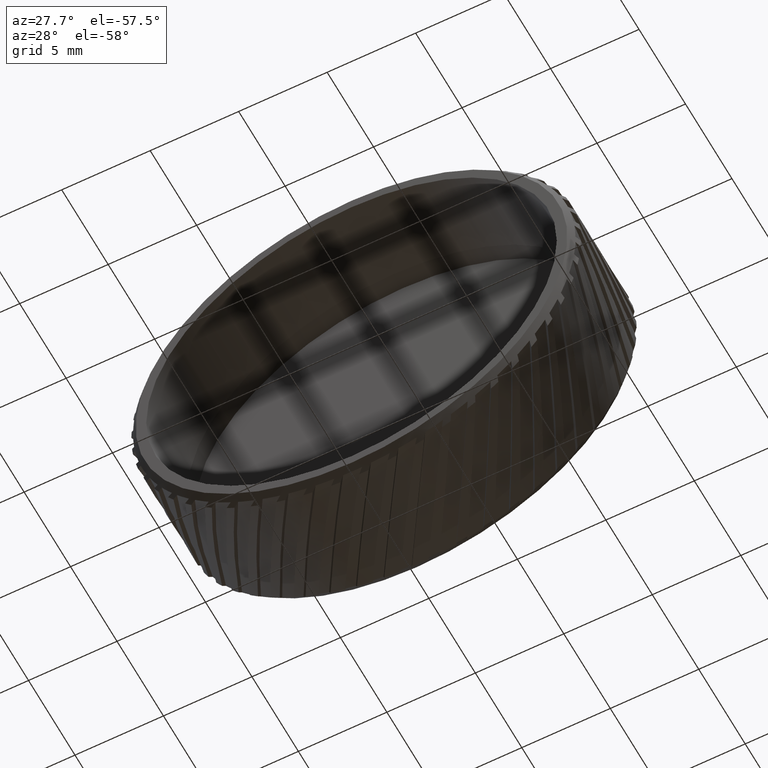
[diagram: clean part render]
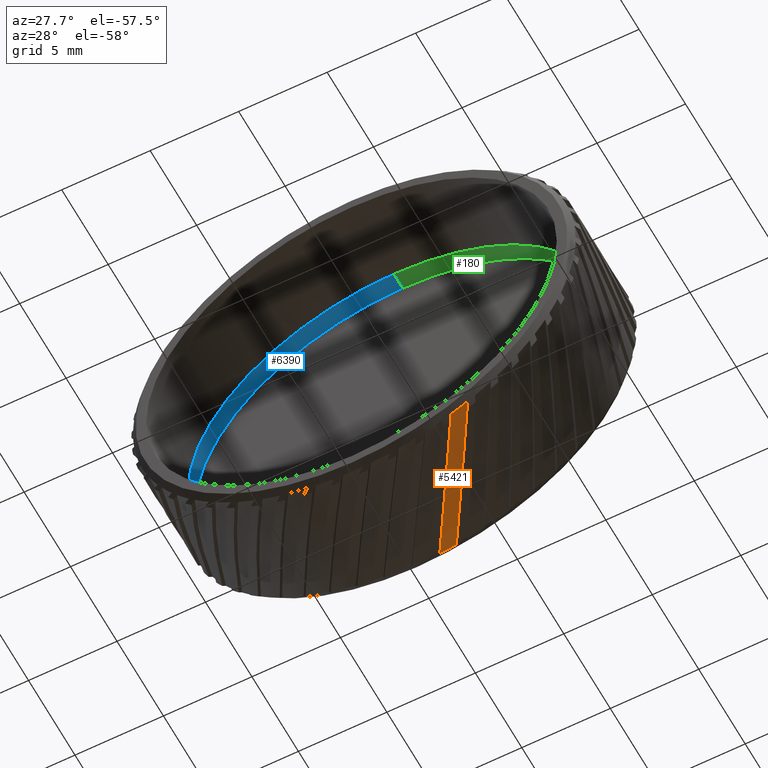
[diagram: same view with three faces highlighted in distinct colors, each labeled with its STEP entity id]
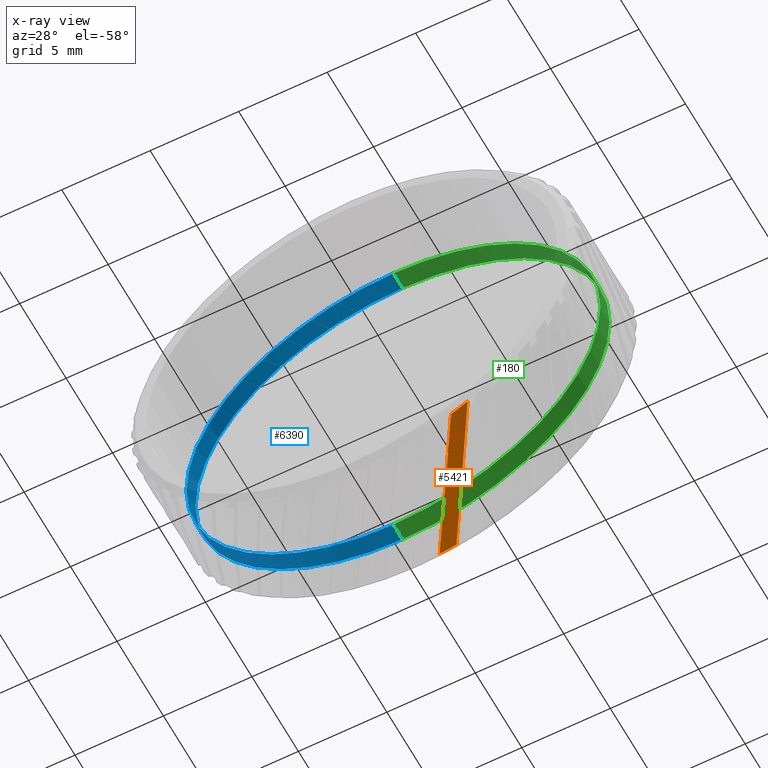
[diagram: x-ray of the same camera — body ghosted, the three highlighted faces saturated]
A machine part, auxiliary view with three faces highlighted in distinct colors.
The next image is the same camera in x-ray (body ghosted, the three faces saturated) — at least one of them is partly hidden behind the body in this view.
Their STEP definitions:

[orange] entity #5421 — the highlighted cylindrical surface (partial cylindrical patch) has radius 12.5 mm, axis along (0, 1, 0).
#2 = CARTESIAN_POINT ( 'NONE',  ( 6.404945631355030100, -13.03088448223190600, -10.73436870334656800 ) ) ;
#151 = DIRECTION ( 'NONE',  ( 0.0000000000000000000, 0.0000000000000000000, -1.000000000000000000 ) ) ;
#372 = CARTESIAN_POINT ( 'NONE',  ( 1.464468305853522800, -6.630884482231918400, -12.41391689118107200 ) ) ;
#530 = CARTESIAN_POINT ( 'NONE',  ( 2.407684982128884600, -6.630884482231918400, -12.26593058136361800 ) ) ;
#642 = AXIS2_PLACEMENT_3D ( 'NONE', #5379, #5456, #3630 ) ;
#884 = CYLINDRICAL_SURFACE ( 'NONE', #6932, 12.50000000000000500 ) ;
#1050 = DIRECTION ( 'NONE',  ( 0.0000000000000000000, 0.0000000000000000000, -1.000000000000000000 ) ) ;
#1233 = CIRCLE ( 'NONE', #5589, 12.50000000000000500 ) ;
#1251 = ORIENTED_EDGE ( 'NONE', *, *, #5615, .T. ) ;
#1362 = VERTEX_POINT ( 'NONE', #4127 ) ;
#1641 = CARTESIAN_POINT ( 'NONE',  ( 5.461728955079669500, -13.03088448223190600, -11.24364339621479100 ) ) ;
#1943 = EDGE_CURVE ( 'NONE', #7426, #1362, #1233, .T. ) ;
#2273 = CARTESIAN_POINT ( 'NONE',  ( 1.464468305853522800, -6.630884482231918400, -12.41391689118107200 ) ) ;
#2282 = EDGE_CURVE ( 'NONE', #1362, #2996, #5792, .T. ) ;
#2992 = CARTESIAN_POINT ( 'NONE',  ( 5.167432856838062500, -11.04950712110288400, -11.47276350400376900 ) ) ;
#2996 = VERTEX_POINT ( 'NONE', #372 ) ;
#3350 = CARTESIAN_POINT ( 'NONE',  ( 0.0000000000000000000, 46.02073106022621100, 0.0000000000000000000 ) ) ;
#3630 = DIRECTION ( 'NONE',  ( 0.0000000000000000000, 0.0000000000000000000, 1.000000000000000000 ) ) ;
#3756 =( BOUNDED_CURVE ( )  B_SPLINE_CURVE ( 3, ( #4211, #5411, #2992, #6004 ),
 .UNSPECIFIED., .F., .T. ) 
 B_SPLINE_CURVE_WITH_KNOTS ( ( 4, 4 ),
 ( 1.764622476436247300, 2.108768499294033200 ),
 .UNSPECIFIED. ) 
 CURVE ( )  GEOMETRIC_REPRESENTATION_ITEM ( )  RATIONAL_B_SPLINE_CURVE ( ( 1.000000000000000000, 0.9901546216693193300, 0.9901546216693193300, 1.000000000000000000 ) ) 
 REPRESENTATION_ITEM ( '' )  );
#4059 = CARTESIAN_POINT ( 'NONE',  ( 2.856224116169768100, -8.859219826775527600, -12.24973162302098100 ) ) ;
#4127 = CARTESIAN_POINT ( 'NONE',  ( 5.461728955079669500, -13.03088448223190600, -11.24364339621479100 ) ) ;
#4166 = EDGE_CURVE ( 'NONE', #2996, #5695, #6490, .T. ) ;
#4211 = CARTESIAN_POINT ( 'NONE',  ( 2.407684982128884600, -6.630884482231918400, -12.26593058136361800 ) ) ;
#4295 = DIRECTION ( 'NONE',  ( 0.0000000000000000000, 1.000000000000000000, 0.0000000000000000000 ) ) ;
#4370 = ORIENTED_EDGE ( 'NONE', *, *, #4166, .T. ) ;
#5379 = CARTESIAN_POINT ( 'NONE',  ( 0.0000000000000000000, -6.630884482231918400, 0.0000000000000000000 ) ) ;
#5411 = CARTESIAN_POINT ( 'NONE',  ( 3.821764021639007000, -8.894961470710724100, -11.98836037628316300 ) ) ;
#5421 = ADVANCED_FACE ( 'NONE', ( #7584 ), #884, .T. ) ;
#5456 = DIRECTION ( 'NONE',  ( 0.0000000000000000000, -1.000000000000000000, 0.0000000000000000000 ) ) ;
#5589 = AXIS2_PLACEMENT_3D ( 'NONE', #7303, #4295, #151 ) ;
#5615 = EDGE_CURVE ( 'NONE', #5695, #7426, #3756, .T. ) ;
#5695 = VERTEX_POINT ( 'NONE', #530 ) ;
#5777 = DIRECTION ( 'NONE',  ( 0.0000000000000000000, 1.000000000000000000, 0.0000000000000000000 ) ) ;
#5792 =( BOUNDED_CURVE ( )  B_SPLINE_CURVE ( 3, ( #1641, #5795, #4059, #2273 ),
 .UNSPECIFIED., .F., .T. ) 
 B_SPLINE_CURVE_WITH_KNOTS ( ( 4, 4 ),
 ( 4.260196926129468800, 4.594961832115921600 ),
 .UNSPECIFIED. ) 
 CURVE ( )  GEOMETRIC_REPRESENTATION_ITEM ( )  RATIONAL_B_SPLINE_CURVE ( ( 1.000000000000000000, 0.9906828218429266600, 0.9906828218429266600, 1.000000000000000000 ) ) 
 REPRESENTATION_ITEM ( '' )  );
#5795 = CARTESIAN_POINT ( 'NONE',  ( 4.201175484085956300, -11.01261674281851700, -11.85597172692922500 ) ) ;
#6004 = CARTESIAN_POINT ( 'NONE',  ( 6.404945631355030100, -13.03088448223190600, -10.73436870334656800 ) ) ;
#6219 = ORIENTED_EDGE ( 'NONE', *, *, #1943, .T. ) ;
#6490 = CIRCLE ( 'NONE', #642, 12.50000000000000500 ) ;
#6932 = AXIS2_PLACEMENT_3D ( 'NONE', #3350, #5777, #1050 ) ;
#7109 = ORIENTED_EDGE ( 'NONE', *, *, #2282, .T. ) ;
#7260 = EDGE_LOOP ( 'NONE', ( #4370, #1251, #6219, #7109 ) ) ;
#7303 = CARTESIAN_POINT ( 'NONE',  ( 0.0000000000000000000, -13.03088448223190600, 0.0000000000000000000 ) ) ;
#7426 = VERTEX_POINT ( 'NONE', #2 ) ;
#7584 = FACE_OUTER_BOUND ( 'NONE', #7260, .T. ) ;

[blue] entity #6390 — the highlighted cylindrical surface (partial cylindrical patch) has radius 11.7 mm, axis along (-0, 1, -0).
#199 = DIRECTION ( 'NONE',  ( 0.0000000000000000000, 0.0000000000000000000, 1.000000000000000000 ) ) ;
#305 = CARTESIAN_POINT ( 'NONE',  ( 0.0000000000000000000, 46.02073106022621100, 0.0000000000000000000 ) ) ;
#533 = LINE ( 'NONE', #3355, #6557 ) ;
#874 = EDGE_CURVE ( 'NONE', #1373, #4619, #2010, .T. ) ;
#1194 = DIRECTION ( 'NONE',  ( 0.0000000000000000000, 0.0000000000000000000, 1.000000000000000000 ) ) ;
#1241 = AXIS2_PLACEMENT_3D ( 'NONE', #4764, #1772, #1194 ) ;
#1258 = ORIENTED_EDGE ( 'NONE', *, *, #4369, .F. ) ;
#1373 = VERTEX_POINT ( 'NONE', #6514 ) ;
#1458 = CARTESIAN_POINT ( 'NONE',  ( 0.0000000000000000000, 46.02073106022621100, 11.70000000000000600 ) ) ;
#1772 = DIRECTION ( 'NONE',  ( -0.0000000000000000000, 1.000000000000000000, -0.0000000000000000000 ) ) ;
#1848 = VERTEX_POINT ( 'NONE', #2417 ) ;
#2010 = CIRCLE ( 'NONE', #1241, 11.70000000000000600 ) ;
#2107 = DIRECTION ( 'NONE',  ( -0.0000000000000000000, 1.000000000000000000, -0.0000000000000000000 ) ) ;
#2317 = CARTESIAN_POINT ( 'NONE',  ( 1.432836755002403900E-015, -8.830884482231917700, -11.70000000000000600 ) ) ;
#2417 = CARTESIAN_POINT ( 'NONE',  ( 0.0000000000000000000, -8.830884482231917700, 11.70000000000000600 ) ) ;
#2669 = DIRECTION ( 'NONE',  ( -0.0000000000000000000, 1.000000000000000000, -0.0000000000000000000 ) ) ;
#3143 = CARTESIAN_POINT ( 'NONE',  ( 0.0000000000000000000, -8.830884482231917700, 0.0000000000000000000 ) ) ;
#3355 = CARTESIAN_POINT ( 'NONE',  ( 1.432836755002403900E-015, 46.02073106022621100, -11.70000000000000600 ) ) ;
#3632 = VERTEX_POINT ( 'NONE', #2317 ) ;
#3766 = AXIS2_PLACEMENT_3D ( 'NONE', #305, #2107, #5712 ) ;
#3777 = DIRECTION ( 'NONE',  ( -0.0000000000000000000, 1.000000000000000000, -0.0000000000000000000 ) ) ;
#4358 = VECTOR ( 'NONE', #2669, 1000.000000000000000 ) ;
#4369 = EDGE_CURVE ( 'NONE', #1848, #4619, #5927, .T. ) ;
#4421 = CARTESIAN_POINT ( 'NONE',  ( 0.0000000000000000000, -7.830884482231917700, 11.70000000000000600 ) ) ;
#4520 = CYLINDRICAL_SURFACE ( 'NONE', #3766, 11.70000000000000600 ) ;
#4589 = EDGE_CURVE ( 'NONE', #3632, #1848, #5007, .T. ) ;
#4619 = VERTEX_POINT ( 'NONE', #4421 ) ;
#4764 = CARTESIAN_POINT ( 'NONE',  ( 0.0000000000000000000, -7.830884482231917700, 0.0000000000000000000 ) ) ;
#4891 = AXIS2_PLACEMENT_3D ( 'NONE', #3143, #3777, #199 ) ;
#5007 = CIRCLE ( 'NONE', #4891, 11.70000000000000600 ) ;
#5262 = ORIENTED_EDGE ( 'NONE', *, *, #6076, .T. ) ;
#5568 = ORIENTED_EDGE ( 'NONE', *, *, #874, .T. ) ;
#5712 = DIRECTION ( 'NONE',  ( 0.0000000000000000000, 0.0000000000000000000, 1.000000000000000000 ) ) ;
#5927 = LINE ( 'NONE', #1458, #4358 ) ;
#6076 = EDGE_CURVE ( 'NONE', #3632, #1373, #533, .T. ) ;
#6295 = DIRECTION ( 'NONE',  ( -0.0000000000000000000, 1.000000000000000000, -0.0000000000000000000 ) ) ;
#6365 = FACE_OUTER_BOUND ( 'NONE', #7329, .T. ) ;
#6390 = ADVANCED_FACE ( 'NONE', ( #6365 ), #4520, .F. ) ;
#6514 = CARTESIAN_POINT ( 'NONE',  ( 1.432836755002403900E-015, -7.830884482231917700, -11.70000000000000600 ) ) ;
#6557 = VECTOR ( 'NONE', #6295, 1000.000000000000000 ) ;
#7329 = EDGE_LOOP ( 'NONE', ( #7359, #5262, #5568, #1258 ) ) ;
#7359 = ORIENTED_EDGE ( 'NONE', *, *, #4589, .F. ) ;

[green] entity #180 — the highlighted cylindrical surface (partial cylindrical patch) has radius 11.7 mm, axis along (-0, 1, -0).
#180 = ADVANCED_FACE ( 'NONE', ( #4711 ), #5646, .F. ) ;
#533 = LINE ( 'NONE', #3355, #6557 ) ;
#611 = EDGE_CURVE ( 'NONE', #4619, #1373, #2946, .T. ) ;
#746 = ORIENTED_EDGE ( 'NONE', *, *, #6076, .F. ) ;
#1129 = AXIS2_PLACEMENT_3D ( 'NONE', #6810, #4477, #1431 ) ;
#1340 = AXIS2_PLACEMENT_3D ( 'NONE', #7233, #3682, #2424 ) ;
#1373 = VERTEX_POINT ( 'NONE', #6514 ) ;
#1431 = DIRECTION ( 'NONE',  ( 0.0000000000000000000, 0.0000000000000000000, 1.000000000000000000 ) ) ;
#1458 = CARTESIAN_POINT ( 'NONE',  ( 0.0000000000000000000, 46.02073106022621100, 11.70000000000000600 ) ) ;
#1467 = EDGE_LOOP ( 'NONE', ( #746, #4453, #1576, #5563 ) ) ;
#1576 = ORIENTED_EDGE ( 'NONE', *, *, #4369, .T. ) ;
#1848 = VERTEX_POINT ( 'NONE', #2417 ) ;
#2065 = CARTESIAN_POINT ( 'NONE',  ( 0.0000000000000000000, -7.830884482231917700, 0.0000000000000000000 ) ) ;
#2317 = CARTESIAN_POINT ( 'NONE',  ( 1.432836755002403900E-015, -8.830884482231917700, -11.70000000000000600 ) ) ;
#2417 = CARTESIAN_POINT ( 'NONE',  ( 0.0000000000000000000, -8.830884482231917700, 11.70000000000000600 ) ) ;
#2424 = DIRECTION ( 'NONE',  ( 0.0000000000000000000, 0.0000000000000000000, 1.000000000000000000 ) ) ;
#2651 = AXIS2_PLACEMENT_3D ( 'NONE', #2065, #2772, #3281 ) ;
#2669 = DIRECTION ( 'NONE',  ( -0.0000000000000000000, 1.000000000000000000, -0.0000000000000000000 ) ) ;
#2772 = DIRECTION ( 'NONE',  ( -0.0000000000000000000, 1.000000000000000000, -0.0000000000000000000 ) ) ;
#2885 = EDGE_CURVE ( 'NONE', #1848, #3632, #4049, .T. ) ;
#2946 = CIRCLE ( 'NONE', #2651, 11.70000000000000600 ) ;
#3281 = DIRECTION ( 'NONE',  ( 0.0000000000000000000, 0.0000000000000000000, 1.000000000000000000 ) ) ;
#3355 = CARTESIAN_POINT ( 'NONE',  ( 1.432836755002403900E-015, 46.02073106022621100, -11.70000000000000600 ) ) ;
#3632 = VERTEX_POINT ( 'NONE', #2317 ) ;
#3682 = DIRECTION ( 'NONE',  ( -0.0000000000000000000, 1.000000000000000000, -0.0000000000000000000 ) ) ;
#4049 = CIRCLE ( 'NONE', #1129, 11.70000000000000600 ) ;
#4358 = VECTOR ( 'NONE', #2669, 1000.000000000000000 ) ;
#4369 = EDGE_CURVE ( 'NONE', #1848, #4619, #5927, .T. ) ;
#4421 = CARTESIAN_POINT ( 'NONE',  ( 0.0000000000000000000, -7.830884482231917700, 11.70000000000000600 ) ) ;
#4453 = ORIENTED_EDGE ( 'NONE', *, *, #2885, .F. ) ;
#4477 = DIRECTION ( 'NONE',  ( -0.0000000000000000000, 1.000000000000000000, -0.0000000000000000000 ) ) ;
#4619 = VERTEX_POINT ( 'NONE', #4421 ) ;
#4711 = FACE_OUTER_BOUND ( 'NONE', #1467, .T. ) ;
#5563 = ORIENTED_EDGE ( 'NONE', *, *, #611, .T. ) ;
#5646 = CYLINDRICAL_SURFACE ( 'NONE', #1340, 11.70000000000000600 ) ;
#5927 = LINE ( 'NONE', #1458, #4358 ) ;
#6076 = EDGE_CURVE ( 'NONE', #3632, #1373, #533, .T. ) ;
#6295 = DIRECTION ( 'NONE',  ( -0.0000000000000000000, 1.000000000000000000, -0.0000000000000000000 ) ) ;
#6514 = CARTESIAN_POINT ( 'NONE',  ( 1.432836755002403900E-015, -7.830884482231917700, -11.70000000000000600 ) ) ;
#6557 = VECTOR ( 'NONE', #6295, 1000.000000000000000 ) ;
#6810 = CARTESIAN_POINT ( 'NONE',  ( 0.0000000000000000000, -8.830884482231917700, 0.0000000000000000000 ) ) ;
#7233 = CARTESIAN_POINT ( 'NONE',  ( 0.0000000000000000000, 46.02073106022621100, 0.0000000000000000000 ) ) ;